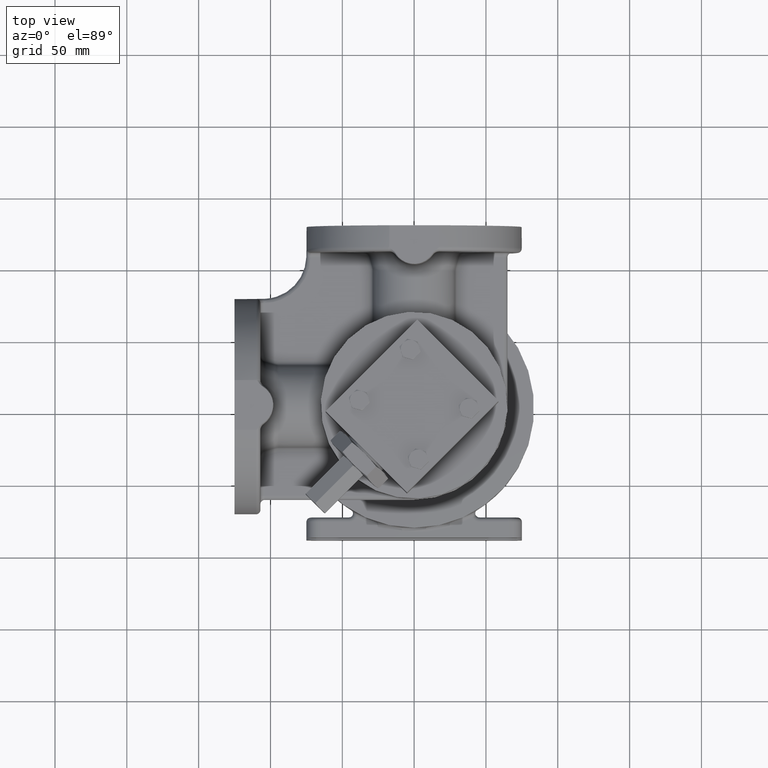
[diagram: clean part render]
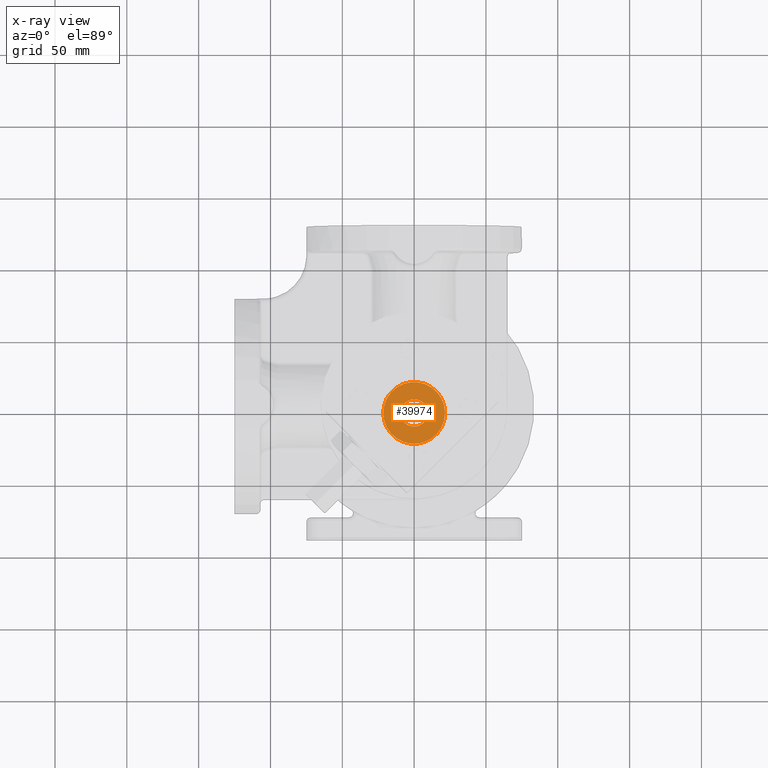
[diagram: x-ray — body ghosted, one internal face saturated and labeled with its STEP entity id]
A machine part, top view, then the same camera in x-ray: the body is ghosted and one INTERNAL B-rep face — a face not visible from any outside direction — is saturated and labeled: STEP entity #39974.
In plain terms, the highlighted planar face has unit normal (0, 0, -1).
Its self-contained STEP definition (entity closure, byte-faithful):
#12957=CARTESIAN_POINT('',(0.E0,-1.212399331156E-14,-1.71E2));
#12958=DIRECTION('',(0.E0,0.E0,-1.E0));
#12959=DIRECTION('',(1.E0,0.E0,0.E0));
#12960=AXIS2_PLACEMENT_3D('',#12957,#12958,#12959);
#12962=CARTESIAN_POINT('',(0.E0,-1.212399331156E-14,-1.71E2));
#12963=DIRECTION('',(0.E0,0.E0,-1.E0));
#12964=DIRECTION('',(-1.E0,0.E0,0.E0));
#12965=AXIS2_PLACEMENT_3D('',#12962,#12963,#12964);
#12967=CARTESIAN_POINT('',(0.E0,-1.212399331156E-14,-1.71E2));
#12968=DIRECTION('',(0.E0,0.E0,1.E0));
#12969=DIRECTION('',(0.E0,1.E0,0.E0));
#12970=AXIS2_PLACEMENT_3D('',#12967,#12968,#12969);
#12972=CARTESIAN_POINT('',(0.E0,-1.212399331156E-14,-1.71E2));
#12973=DIRECTION('',(0.E0,0.E0,1.E0));
#12974=DIRECTION('',(0.E0,-1.E0,0.E0));
#12975=AXIS2_PLACEMENT_3D('',#12972,#12973,#12974);
#16627=CARTESIAN_POINT('',(2.15E1,-2.261938995958E-14,-1.71E2));
#16628=CARTESIAN_POINT('',(-2.15E1,0.E0,-1.71E2));
#16629=VERTEX_POINT('',#16627);
#16630=VERTEX_POINT('',#16628);
#16998=CARTESIAN_POINT('',(0.E0,9.5E0,-1.71E2));
#16999=CARTESIAN_POINT('',(0.E0,-9.5E0,-1.71E2));
#17000=VERTEX_POINT('',#16998);
#17001=VERTEX_POINT('',#16999);
#39958=CARTESIAN_POINT('',(0.E0,-2.473785534278E-14,-1.71E2));
#39959=DIRECTION('',(0.E0,0.E0,-1.E0));
#39960=DIRECTION('',(-1.E0,0.E0,0.E0));
#39961=AXIS2_PLACEMENT_3D('',#39958,#39959,#39960);
#39962=PLANE('',#39961);
#39963=ORIENTED_EDGE('',*,*,#39948,.F.);
#39965=ORIENTED_EDGE('',*,*,#39964,.F.);
#39966=EDGE_LOOP('',(#39963,#39965));
#39967=FACE_OUTER_BOUND('',#39966,.F.);
#39969=ORIENTED_EDGE('',*,*,#39968,.F.);
#39971=ORIENTED_EDGE('',*,*,#39970,.F.);
#39972=EDGE_LOOP('',(#39969,#39971));
#39973=FACE_BOUND('',#39972,.F.);
#39974=ADVANCED_FACE('',(#39967,#39973),#39962,.T.);
#12961=CIRCLE('',#12960,2.15E1);
#12966=CIRCLE('',#12965,2.15E1);
#12971=CIRCLE('',#12970,9.5E0);
#12976=CIRCLE('',#12975,9.5E0);
#39948=EDGE_CURVE('',#16629,#16630,#12961,.T.);
#39964=EDGE_CURVE('',#16630,#16629,#12966,.T.);
#39968=EDGE_CURVE('',#17000,#17001,#12971,.T.);
#39970=EDGE_CURVE('',#17001,#17000,#12976,.T.);